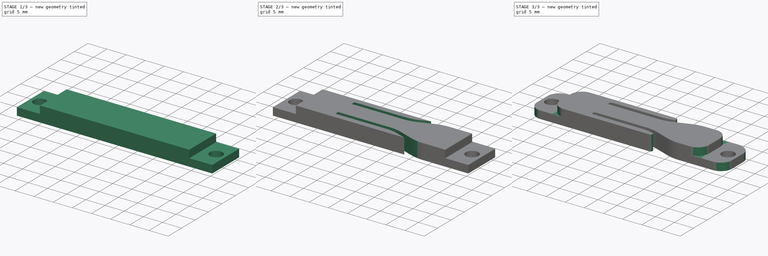
[diagram: build sequence overview — one tinted view per stage of 3, left to right]
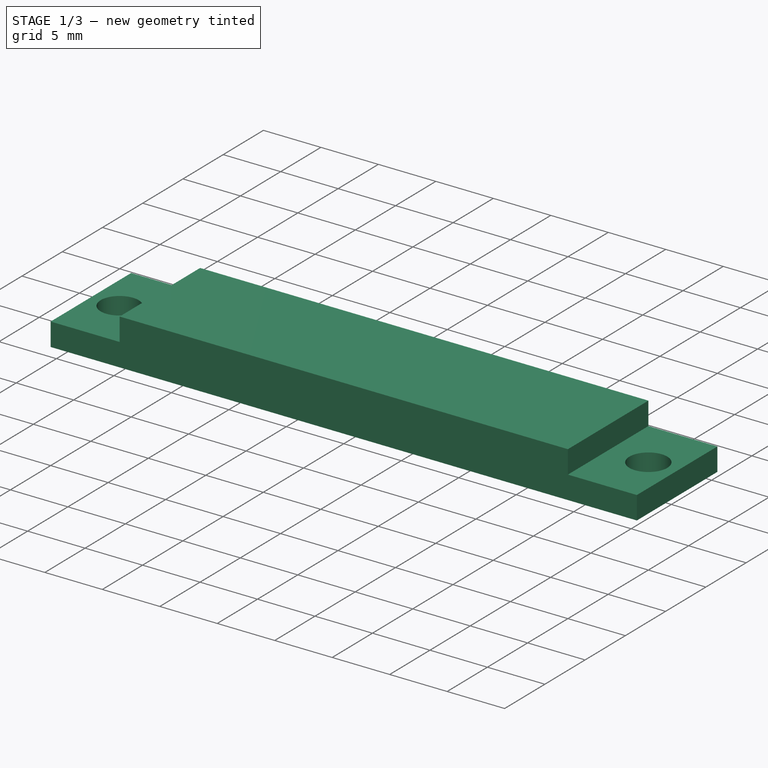
[diagram: stage 1 of 3 — iso view after this stage's code; geometry added in this stage tinted green]
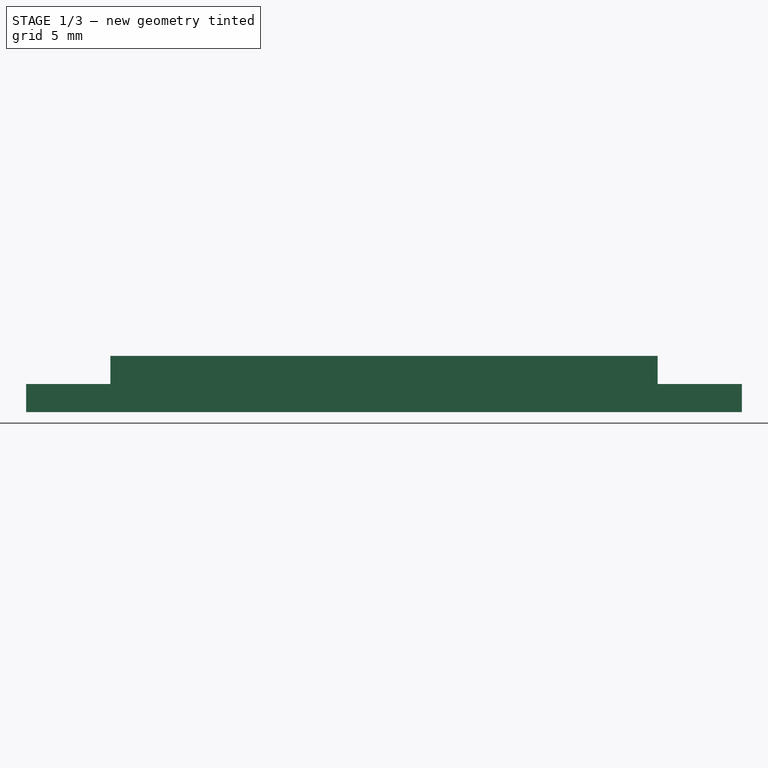
[diagram: stage 1 of 3 — front view after this stage's code; geometry added in this stage tinted green]
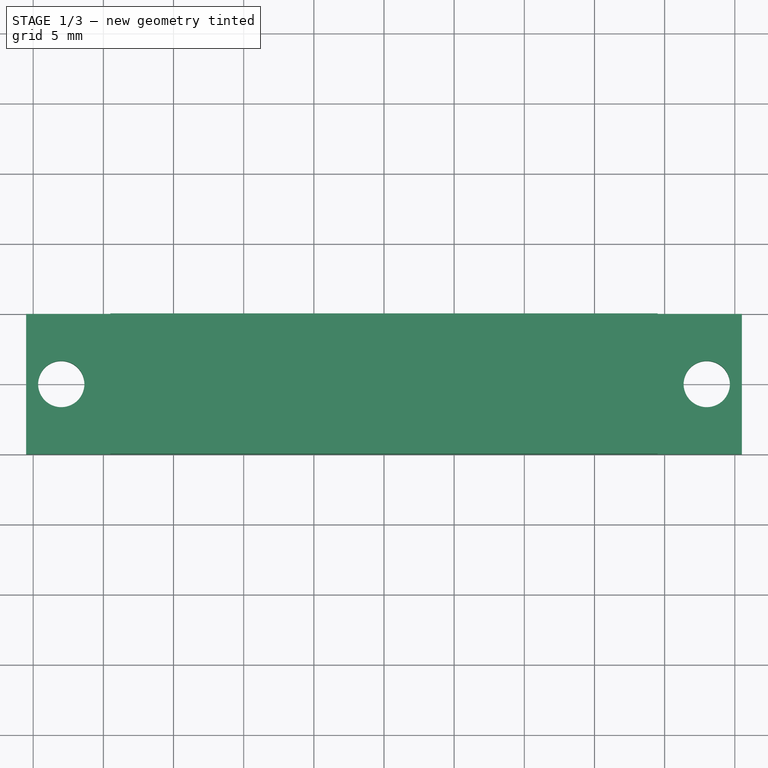
[diagram: stage 1 of 3 — top view after this stage's code; geometry added in this stage tinted green]
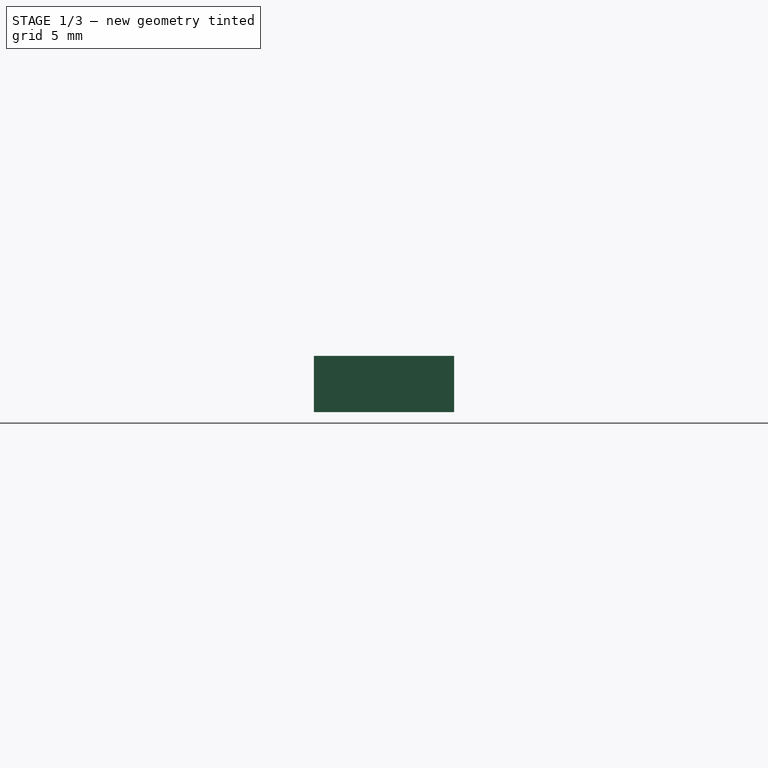
[diagram: stage 1 of 3 — right view after this stage's code; geometry added in this stage tinted green]
FCSTD DOCUMENT  (FreeCAD 0.18R16131 (Git))
Label: DisplayWireStub
License: All rights reserved
LicenseURL: http://en.wikipedia.org/wiki/All_rights_reserved
objects: Sketcher::SketchObject×3, PartDesign::Fillet×3, PartDesign::Pad×2, PartDesign::Pocket×1, PartDesign::Body×1, App::Part×1
note: 13 computed .brp shape members not serialized (recipe doc carries the construction recipe); baked Part::Feature solids carry a one-line shape summary decoded from their .brp

FEATURE [Sketcher::SketchObject] Sketch
  MapMode = 5
  Support = -> [XY_Plane001]
  sketch-geometry (6):
    g0: LineSegment StartX=-25.5 StartY=5 StartZ=0 EndX=25.5 EndY=5 EndZ=0
    g1: LineSegment StartX=25.5 StartY=5 StartZ=0 EndX=25.5 EndY=-5 EndZ=0
    g2: LineSegment StartX=25.5 StartY=-5 StartZ=0 EndX=-25.5 EndY=-5 EndZ=0
    g3: LineSegment StartX=-25.5 StartY=-5 StartZ=0 EndX=-25.5 EndY=5 EndZ=0
    g4: Circle CenterX=-23 CenterY=0 CenterZ=0 NormalX=0 NormalY=0 NormalZ=1 AngleXU=0 Radius=1.65
    g5: Circle CenterX=23 CenterY=0 CenterZ=0 NormalX=0 NormalY=0 NormalZ=1 AngleXU=0 Radius=1.65
  constraints (15):
    c: Coincident(g0,g1)
    c: Coincident(g1,g2)
    c: Coincident(g2,g3)
    c: Coincident(g3,g0)
    c: Horizontal(g2)
    c: Vertical(g1)
    c: Symmetric(g0,g2,g-1)
    c: Symmetric(g0,g0,g-2)
    c: Distance(g0) = 51
    c: Distance(g3) = 10
    c: Equal(g5,g4)
    c: Symmetric(g4,g5,g-2)
    c: PointOnObject(g4,g-1)
    c: Distance(g5,g4) = 46
    c: Radius(g4) = 1.65
FEATURE [PartDesign::Pad] Pad
  Length = 2
  Length2 = 100
  Profile = -> Sketch
  Reversed = true
  Type = 0
FEATURE [Sketcher::SketchObject] Sketch001
  MapMode = 5
  Support = -> [XY_Plane001]
  sketch-geometry (4):
    g0: LineSegment StartX=-19.5 StartY=5 StartZ=0 EndX=19.5 EndY=5 EndZ=0
    g1: LineSegment StartX=19.5 StartY=5 StartZ=0 EndX=19.5 EndY=-5 EndZ=0
    g2: LineSegment StartX=19.5 StartY=-5 StartZ=0 EndX=-19.5 EndY=-5 EndZ=0
    g3: LineSegment StartX=-19.5 StartY=-5 StartZ=0 EndX=-19.5 EndY=5 EndZ=0
  constraints (10):
    c: Coincident(g0,g1)
    c: Coincident(g1,g2)
    c: Coincident(g2,g3)
    c: Coincident(g3,g0)
    c: Horizontal(g0)
    c: Vertical(g3)
    c: Symmetric(g1,g0,g-1)
    c: Symmetric(g1,g2,g-2)
    c: Distance(g3) = 10
    c: Distance(g0) = 39
FEATURE [PartDesign::Pad] Pad001
  BaseFeature = -> Pad
  Length = 2
  Length2 = 100
  Profile = -> Sketch001
  Type = 0
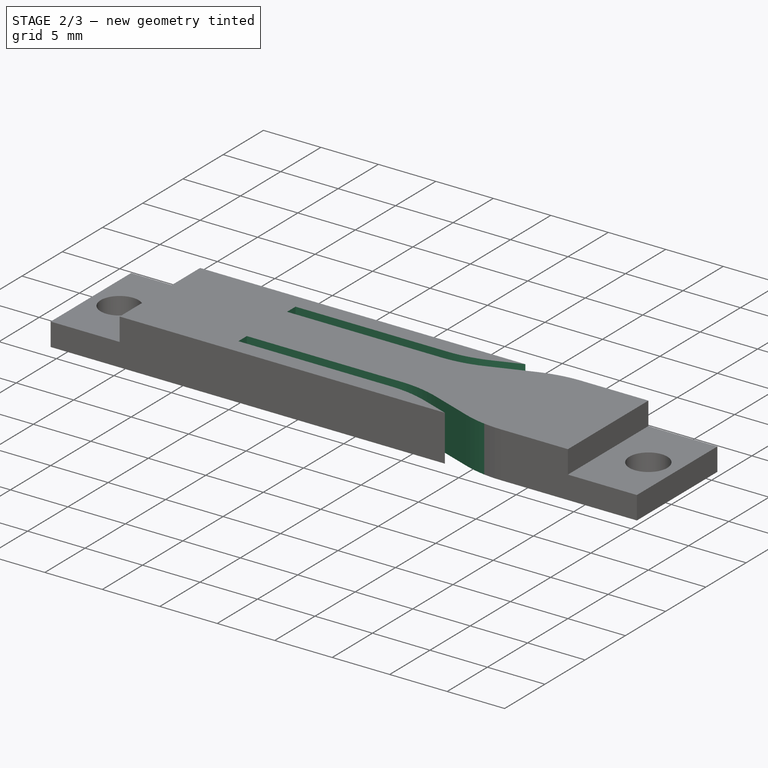
[diagram: stage 2 of 3 — iso view after this stage's code; geometry added in this stage tinted green]
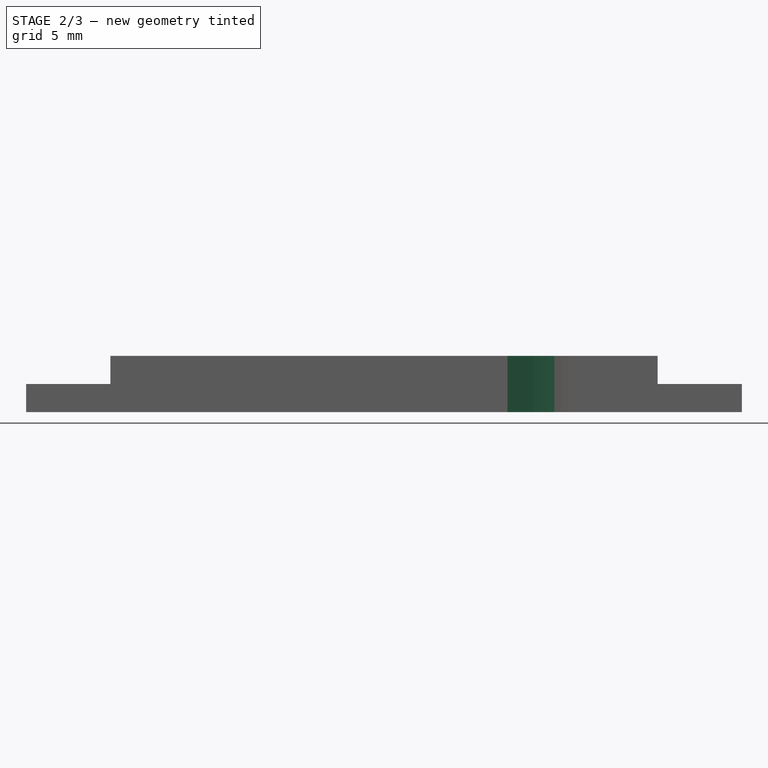
[diagram: stage 2 of 3 — front view after this stage's code; geometry added in this stage tinted green]
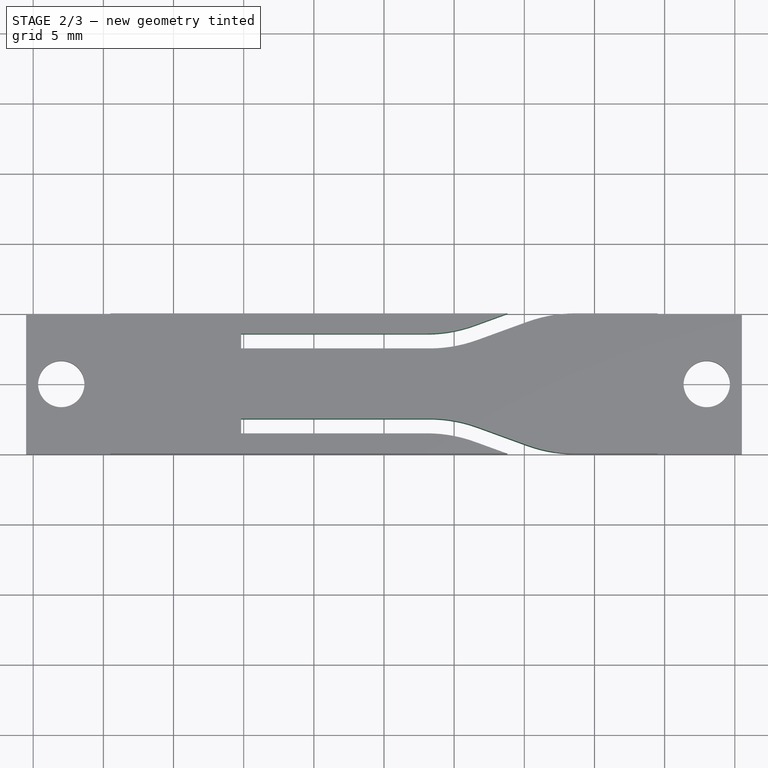
[diagram: stage 2 of 3 — top view after this stage's code; geometry added in this stage tinted green]
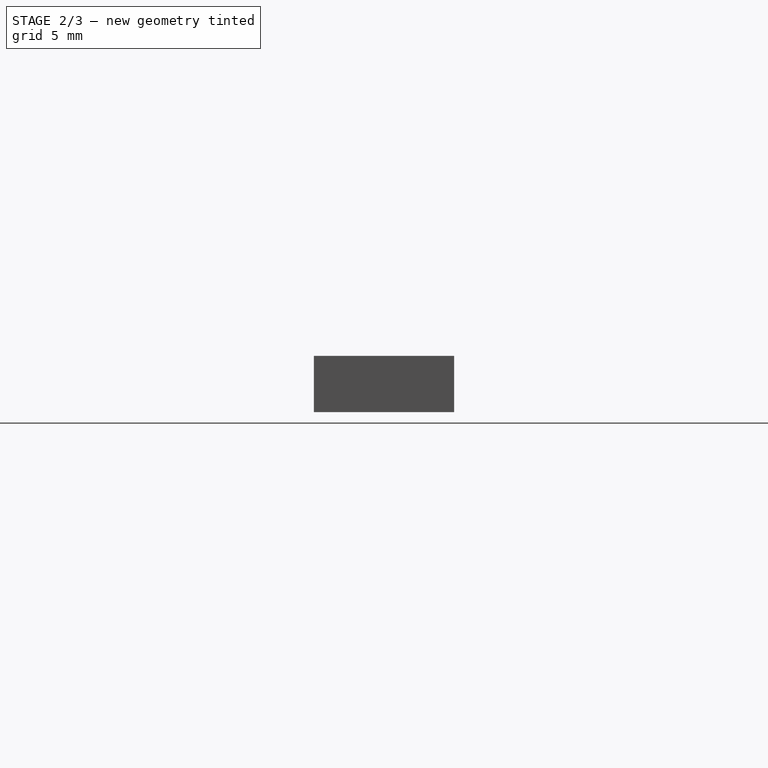
[diagram: stage 2 of 3 — right view after this stage's code; geometry added in this stage tinted green]
FEATURE [Sketcher::SketchObject] Sketch002
  MapMode = 5
  Support = -> [XY_Plane001]
  sketch-geometry (12):
    g0: LineSegment StartX=-10.1851 StartY=3.55 StartZ=0 EndX=4.81486 EndY=3.55 EndZ=0
    g1: LineSegment StartX=5 StartY=2.5 StartZ=0 EndX=-10.1851 EndY=2.5 EndZ=0
    g2: LineSegment StartX=-10.1851 StartY=2.5 StartZ=0 EndX=-10.1851 EndY=3.55 EndZ=0
    g3: LineSegment StartX=-10.1851 StartY=-2.5 StartZ=0 EndX=5 EndY=-2.5 EndZ=0
    g4: LineSegment StartX=4.81486 StartY=-3.55 StartZ=0 EndX=-10.1851 EndY=-3.55 EndZ=0
    g5: LineSegment StartX=-10.1851 StartY=-3.55 StartZ=0 EndX=-10.1851 EndY=-2.5 EndZ=0
    g6: LineSegment StartX=4.81486 StartY=3.55 StartZ=0 EndX=23.6087 EndY=10.3904 EndZ=0
    g7: LineSegment StartX=4.81486 StartY=-3.55 StartZ=0 EndX=23.6087 EndY=-10.3904 EndZ=0
    g8: LineSegment StartX=5 StartY=-2.5 StartZ=0 EndX=23.7939 EndY=-9.3404 EndZ=0
    g9: LineSegment StartX=5 StartY=2.5 StartZ=0 EndX=23.7939 EndY=9.3404 EndZ=0
    g10: LineSegment StartX=23.6087 StartY=10.3904 StartZ=0 EndX=23.7939 EndY=9.3404 EndZ=0
    g11: LineSegment StartX=23.6087 StartY=-10.3904 StartZ=0 EndX=23.7939 EndY=-9.3404 EndZ=0
  constraints (32):
    c: Coincident(g1,g2)
    c: Coincident(g2,g0)
    c: Horizontal(g0)
    c: Horizontal(g1)
    c: Vertical(g2)
    c: Coincident(g4,g5)
    c: Coincident(g5,g3)
    c: Horizontal(g4)
    c: Vertical(g5)
    c: Symmetric(g1,g3,g-1)
    c: Equal(g5,g2)
    c: Equal(g0,g4)
    c: Distance(g2) = 1.05
    c: Distance(g0) = 15
    c: Distance(g3,g1) = 5
    c: Angle(g6,g0) = 2.79253
    c: Coincident(g6,g0)
    c: Coincident(g7,g4)
    c: Symmetric(g6,g7,g-1)
    c: Coincident(g8,g3)
    c: Distance(g4,g8) = 1.05
    c: Coincident(g9,g1)
    c: Symmetric(g9,g8,g-1)
    c: Symmetric(g1,g3,g-1)
    c: Distance(g8,g7) = 1.05
    c: Coincident(g10,g6)
    c: Coincident(g10,g9)
    c: Coincident(g11,g7)
    c: Coincident(g11,g8)
    c: Equal(g7,g8)
    c: Distance(g7) = 20
    c: DistanceX(g-2,g1) = 5
FEATURE [PartDesign::Pocket] Pocket
  BaseFeature = -> Pad001
  Length = 5
  Length2 = 100
  Midplane = true
  Profile = -> Sketch002
  Type = 1
FEATURE [PartDesign::Fillet] Fillet
  Base = -> Pocket [Edge53,Edge56,Edge68,Edge15,Edge58,Edge64]
  BaseFeature = -> Pocket
  Radius = 10
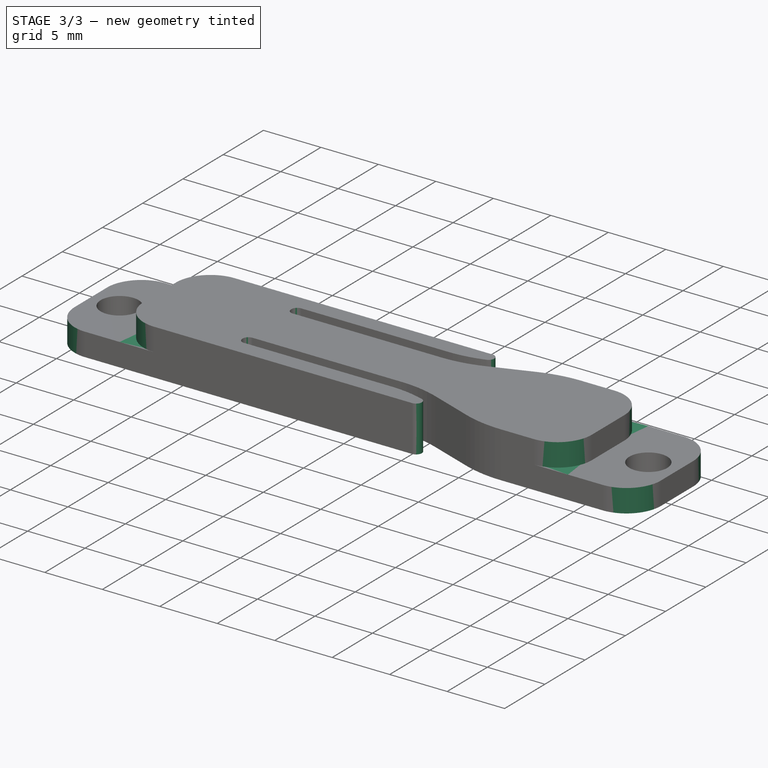
[diagram: stage 3 of 3 — iso view after this stage's code; geometry added in this stage tinted green]
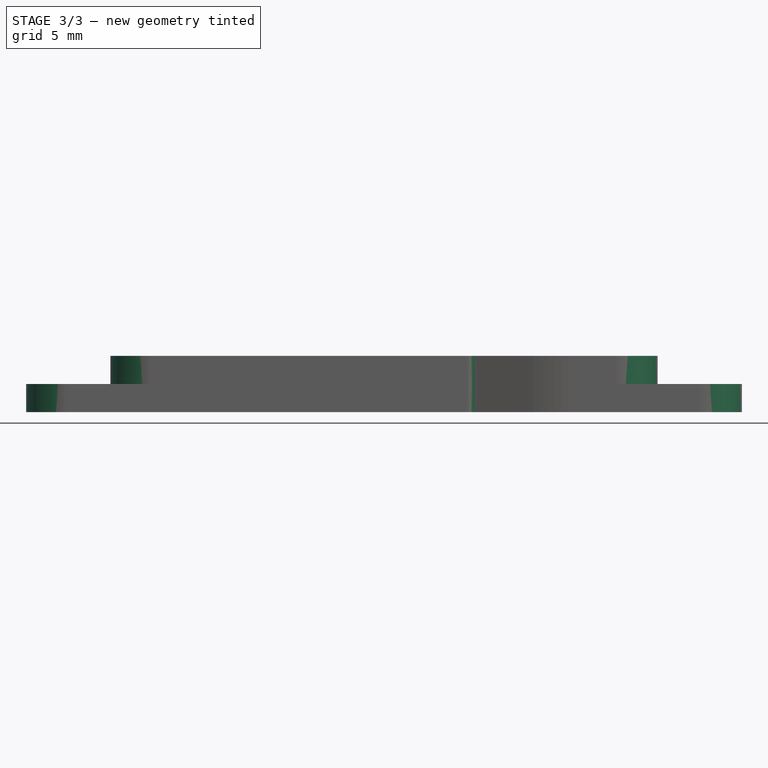
[diagram: stage 3 of 3 — front view after this stage's code; geometry added in this stage tinted green]
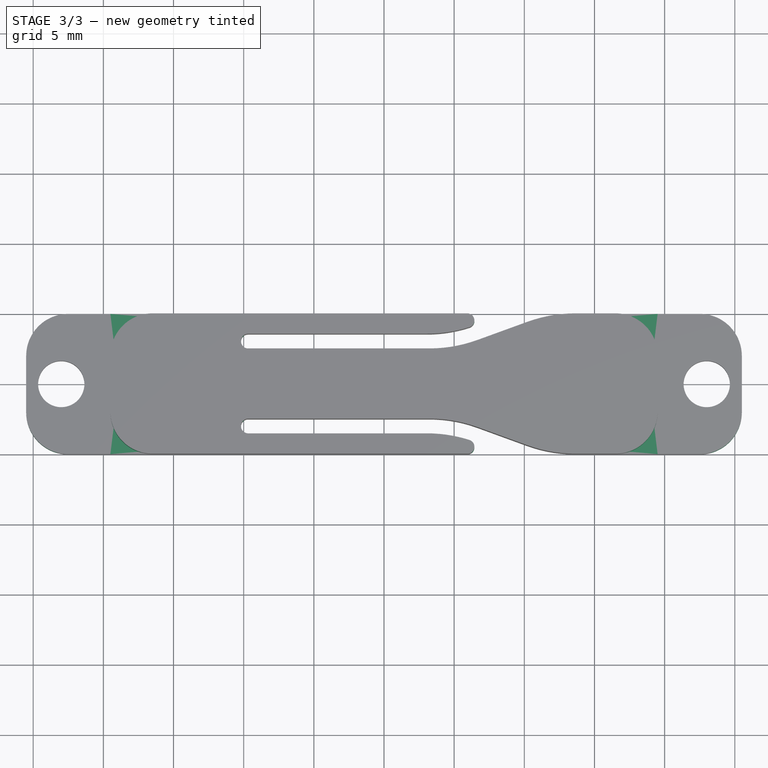
[diagram: stage 3 of 3 — top view after this stage's code; geometry added in this stage tinted green]
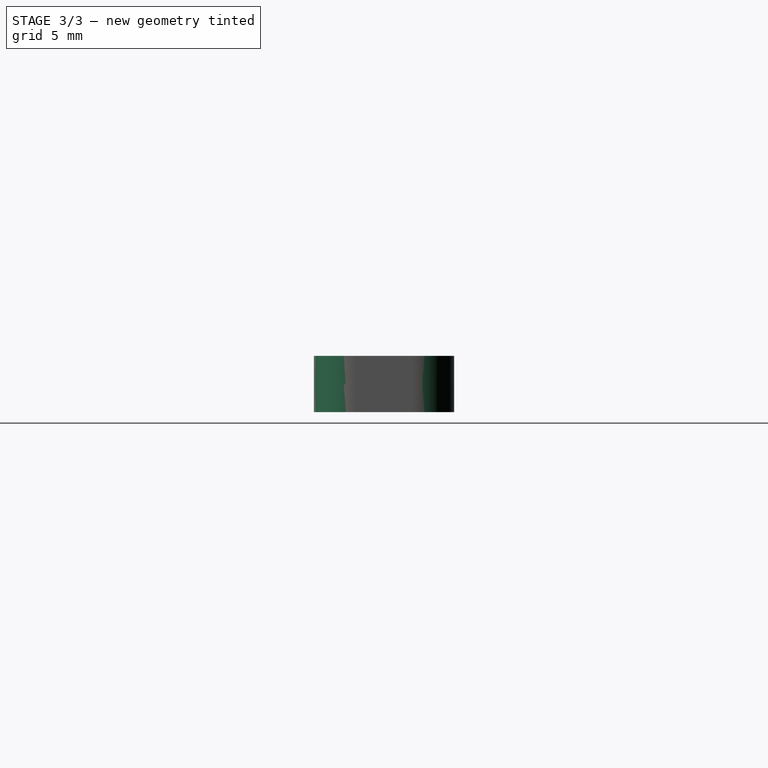
[diagram: stage 3 of 3 — right view after this stage's code; geometry added in this stage tinted green]
FEATURE [PartDesign::Fillet] Fillet001
  Base = -> Fillet [Edge57,Edge5,Edge61,Edge63,Edge71,Edge68]
  BaseFeature = -> Fillet
  Radius = 0.5
FEATURE [PartDesign::Fillet] Fillet002
  Base = -> Fillet001 [Edge97,Edge102,Edge110,Edge105,Edge71,Edge68,Edge39,Edge36]
  BaseFeature = -> Fillet001
  Radius = 3
FEATURE [PartDesign::Body] Body
  Group = -> [Sketch,Pad,Sketch001,Pad001,Sketch002,Pocket,Fillet,Fillet001,Fillet002]
  Origin = -> Origin001
  Tip = -> Fillet002
FEATURE [App::Part] Part
  Group = -> [Body]
  Origin = -> Origin
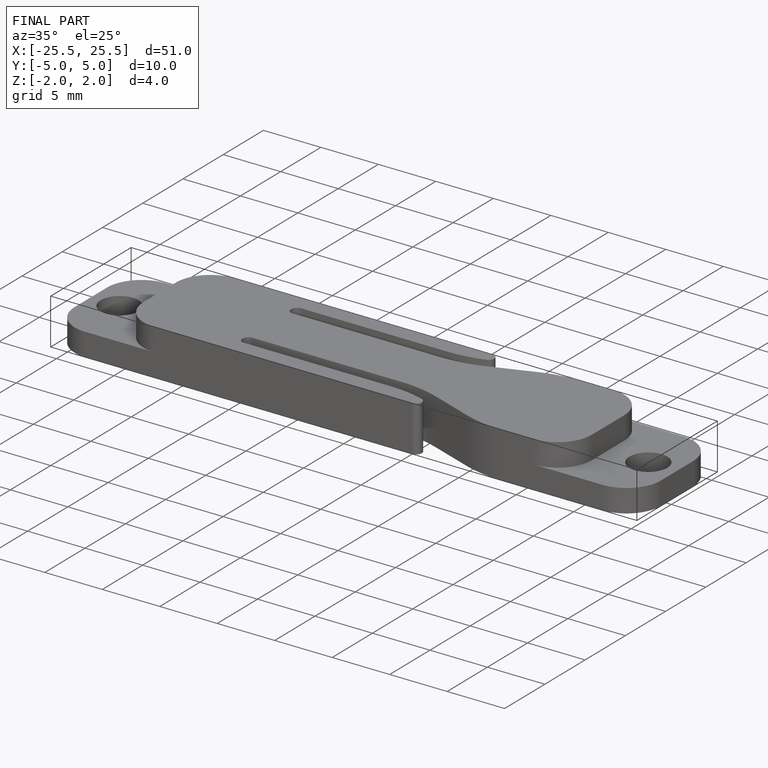
[diagram: finished part — iso view with bounding-box wireframe]
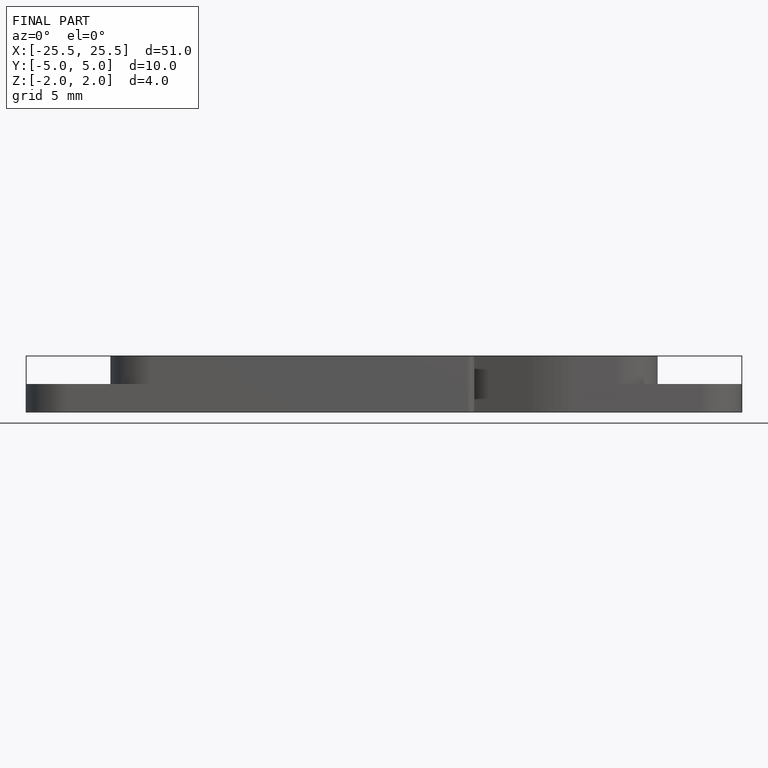
[diagram: finished part — front view with bounding-box wireframe]
